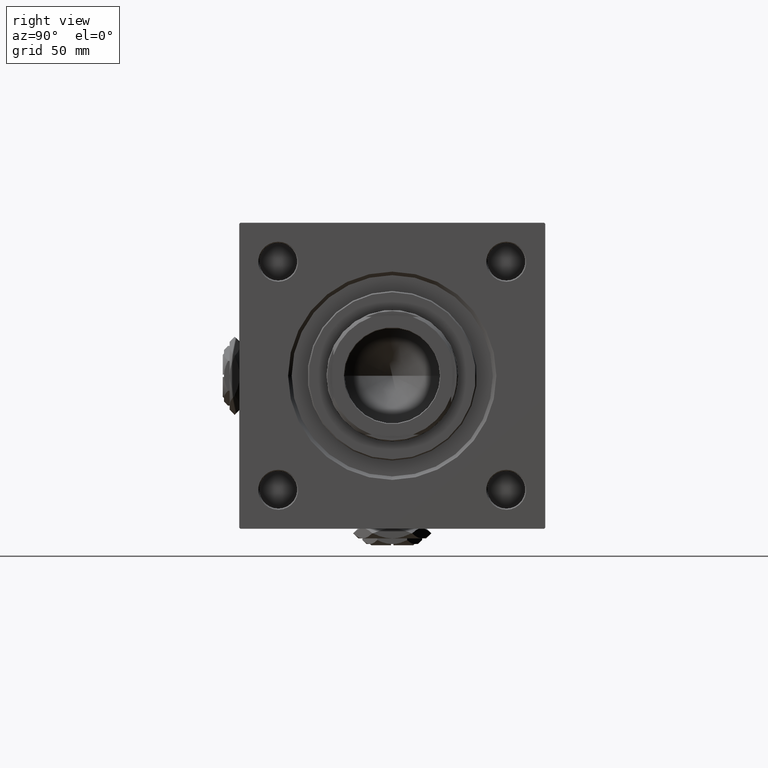
[diagram: clean part render]
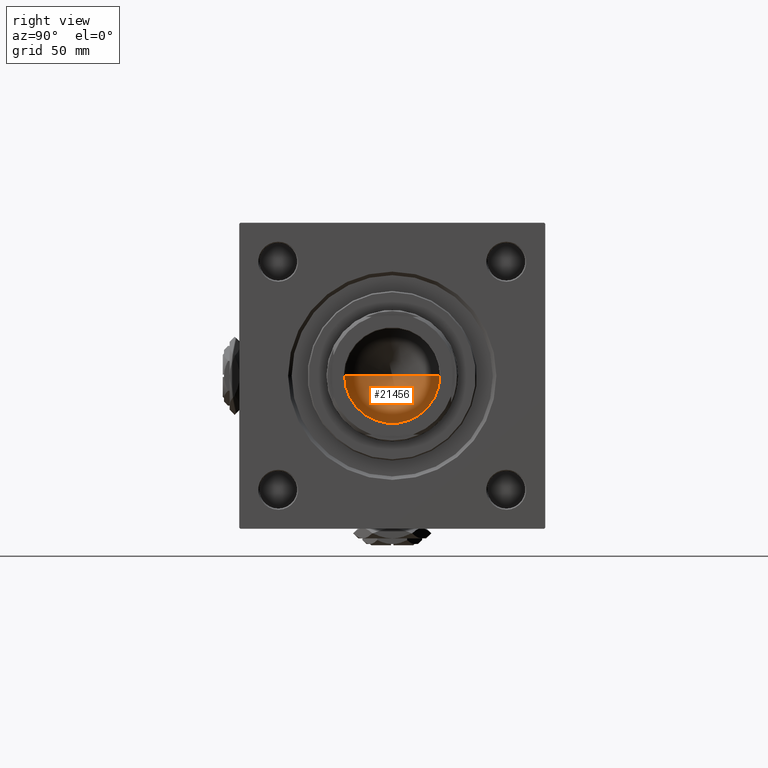
[diagram: same view with one face highlighted and labeled with its STEP entity id]
A machine part, right view. The second image highlights one B-rep face of the part: STEP entity #21456.
In plain terms, the highlighted conical surface has half-angle 59 deg.
Its self-contained STEP definition (entity closure, byte-faithful):
#1401 = AXIS2_PLACEMENT_3D ( 'NONE', #27643, #43923, #7375 ) ;
#5599 = VECTOR ( 'NONE', #18281, 1000.000000000000000 ) ;
#7114 = EDGE_CURVE ( 'NONE', #47787, #16377, #52553, .T. ) ;
#7375 = DIRECTION ( 'NONE',  ( 1.000000000000000000, 0.000000000000000000, 0.000000000000000000 ) ) ;
#9763 = LINE ( 'NONE', #46589, #5599 ) ;
#12801 = CARTESIAN_POINT ( 'NONE',  ( -20.24999999999998934, 2.479909768273389117E-15, 117.0000000000000142 ) ) ;
#16377 = VERTEX_POINT ( 'NONE', #12801 ) ;
#18281 = DIRECTION ( 'NONE',  ( -0.8571673007021115565, 1.049727191138617710E-16, 0.5150380749100554878 ) ) ;
#21456 = ADVANCED_FACE ( 'NONE', ( #46726 ), #41895, .F. ) ;
#21863 = EDGE_LOOP ( 'NONE', ( #28151, #42930, #29746 ) ) ;
#21893 = CARTESIAN_POINT ( 'NONE',  ( 0.000000000000000000, 0.000000000000000000, 117.0000000000000142 ) ) ;
#23736 = DIRECTION ( 'NONE',  ( 0.8571673007021115565, 0.000000000000000000, 0.5150380749100554878 ) ) ;
#24570 = VERTEX_POINT ( 'NONE', #44500 ) ;
#27643 = CARTESIAN_POINT ( 'NONE',  ( 0.000000000000000000, 0.000000000000000000, 117.0000000000000142 ) ) ;
#28151 = ORIENTED_EDGE ( 'NONE', *, *, #32063, .F. ) ;
#29746 = ORIENTED_EDGE ( 'NONE', *, *, #7114, .T. ) ;
#29916 = DIRECTION ( 'NONE',  ( -0.000000000000000000, -0.000000000000000000, 1.000000000000000000 ) ) ;
#31487 = CARTESIAN_POINT ( 'NONE',  ( 20.24999999999998934, 0.000000000000000000, 117.0000000000000142 ) ) ;
#32063 = EDGE_CURVE ( 'NONE', #24570, #16377, #9763, .T. ) ;
#33149 = CARTESIAN_POINT ( 'NONE',  ( 20.24999999999998934, 0.000000000000000000, 117.0000000000000142 ) ) ;
#41895 = CONICAL_SURFACE ( 'NONE', #42735, 20.24999999999998934, 1.029744258676652979 ) ;
#42268 = EDGE_CURVE ( 'NONE', #24570, #47787, #44033, .T. ) ;
#42735 = AXIS2_PLACEMENT_3D ( 'NONE', #21893, #29916, #46198 ) ;
#42930 = ORIENTED_EDGE ( 'NONE', *, *, #42268, .T. ) ;
#43923 = DIRECTION ( 'NONE',  ( -0.000000000000000000, -0.000000000000000000, 1.000000000000000000 ) ) ;
#44033 = LINE ( 'NONE', #31487, #46725 ) ;
#44500 = CARTESIAN_POINT ( 'NONE',  ( -1.584115414415908206E-14, 0.000000000000000000, 104.8325724646918928 ) ) ;
#46198 = DIRECTION ( 'NONE',  ( 1.000000000000000000, 0.000000000000000000, 0.000000000000000000 ) ) ;
#46589 = CARTESIAN_POINT ( 'NONE',  ( -20.24999999999998934, 2.479909768273389117E-15, 117.0000000000000142 ) ) ;
#46725 = VECTOR ( 'NONE', #23736, 1000.000000000000000 ) ;
#46726 = FACE_OUTER_BOUND ( 'NONE', #21863, .T. ) ;
#47787 = VERTEX_POINT ( 'NONE', #33149 ) ;
#52553 = CIRCLE ( 'NONE', #1401, 20.24999999999998934 ) ;